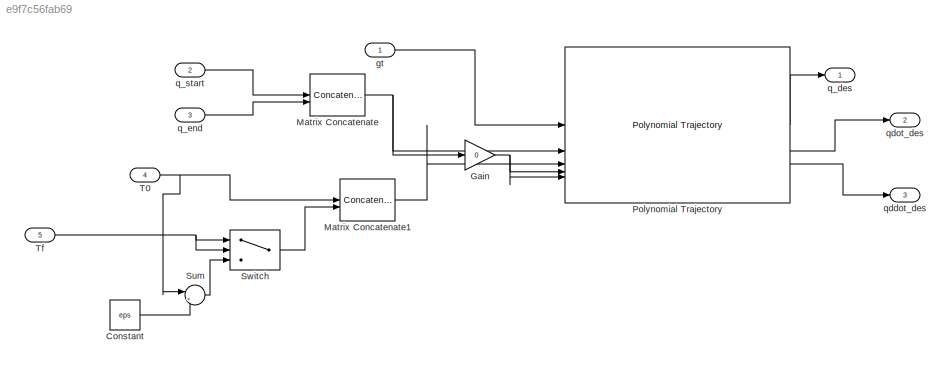
MODEL slx_e9f7c56fab69
KIND model
CONFIG AbsTol = auto
CONFIG EnableMultiTasking = off
CONFIG FixedStep = 0.001
CONFIG MaxStep = auto
CONFIG MinStep = auto
CONFIG RelTol = 1e-3
CONFIG SampleTimeConstraint = Unconstrained
CONFIG SolverName = ode8
CONFIG StartTime = 0.0
CONFIG StopTime = Inf
WORKSPACE source: mxarray member
WORKSPACE q_init_l: Simulink.Parameter (value not decoded)
WORKSPACE q_init_r: Simulink.Parameter (value not decoded)
WORKSPACE robot: robotics.RigidBodyTree (value not decoded)
BLOCK [Constant] Constant
  Value = eps
BLOCK [Gain] Gain
  Gain = 0
BLOCK [Concatenate] Matrix Concatenate
  ConcatenateDimension = 2
  Mode = Multidimensional array
BLOCK [Concatenate] Matrix Concatenate1
  ConcatenateDimension = 2
  Mode = Multidimensional array
BLOCK [Reference] Polynomial Trajectory  REF=robotcorelib/Polynomial Trajectory
  LibrarySourceBlock = robotutilslib/Polynomial Trajectory
  SourceBlock = robotcorelib/Polynomial Trajectory
  SourceType = robotics.slcore.internal.block.PolyTrajSys
BLOCK [Sum] Sum
  Inputs = |++
BLOCK [Switch] Switch
  Criteria = u2 > Threshold
  InputSameDT = off
  SaturateOnIntegerOverflow = off
BLOCK [Inport] T0
  Port = 4
BLOCK [Inport] Tf
  OutDataTypeStr = double
  OutMax = [1000]
  OutMin = [0.001]
  Port = 5
BLOCK [Inport] gt
BLOCK [Outport] q_des
BLOCK [Inport] q_end
  Port = 3
  PortDimensions = 6
BLOCK [Inport] q_start
  Port = 2
  PortDimensions = 6
BLOCK [Outport] qddot_des
  Port = 3
BLOCK [Outport] qdot_des
  Port = 2
LINE Constant:1 -> Sum:2
NET Gain:1 -> Polynomial Trajectory:4, Polynomial Trajectory:5
LINE Matrix Concatenate1:1 -> Polynomial Trajectory:3
NET Matrix Concatenate:1 -> Gain:1, Polynomial Trajectory:2
LINE Polynomial Trajectory:1 -> q_des:1
LINE Polynomial Trajectory:2 -> qdot_des:1
LINE Polynomial Trajectory:3 -> qddot_des:1
LINE Sum:1 -> Switch:3
LINE Switch:1 -> Matrix Concatenate1:2
NET T0:1 -> Matrix Concatenate1:1, Sum:1
NET Tf:1 -> Switch:1, Switch:2
LINE gt:1 -> Polynomial Trajectory:1
LINE q_end:1 -> Matrix Concatenate:2
LINE q_start:1 -> Matrix Concatenate:1
note: NET lines group one-source signal fan-out (src -> all destinations, sorted); 1:1 wires keep LINE
